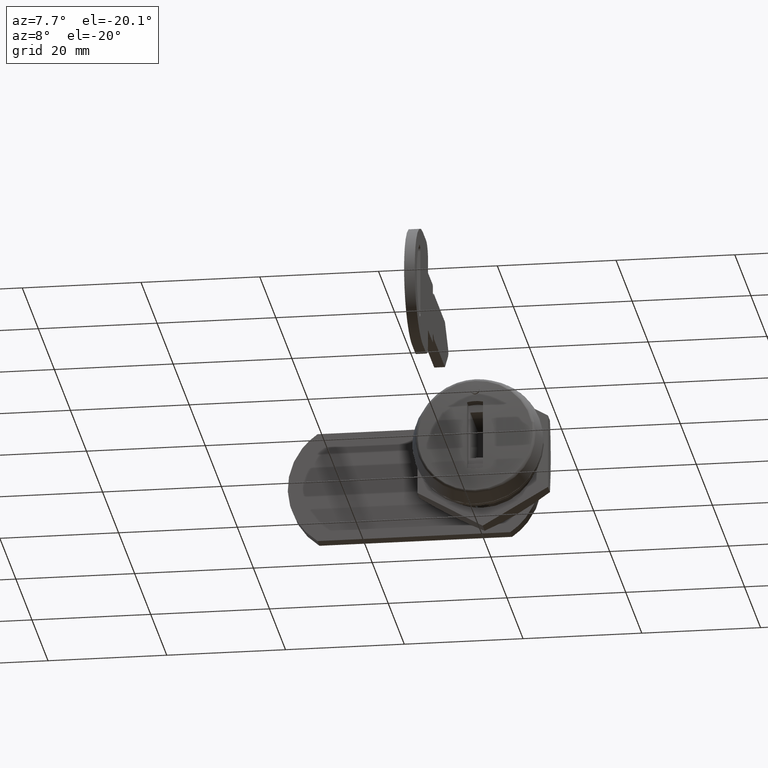
[diagram: clean part render]
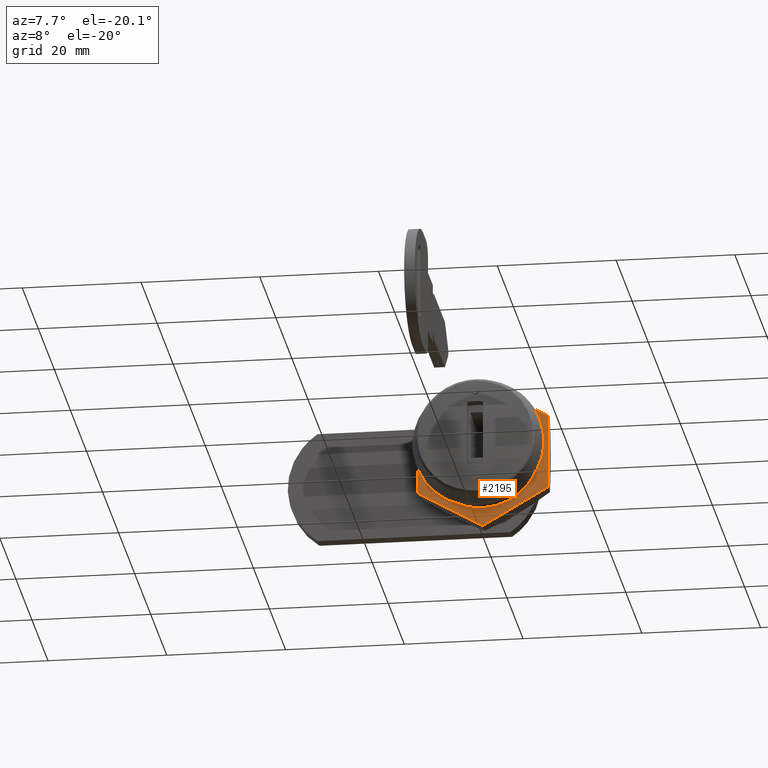
[diagram: same view with one face highlighted and labeled with its STEP entity id]
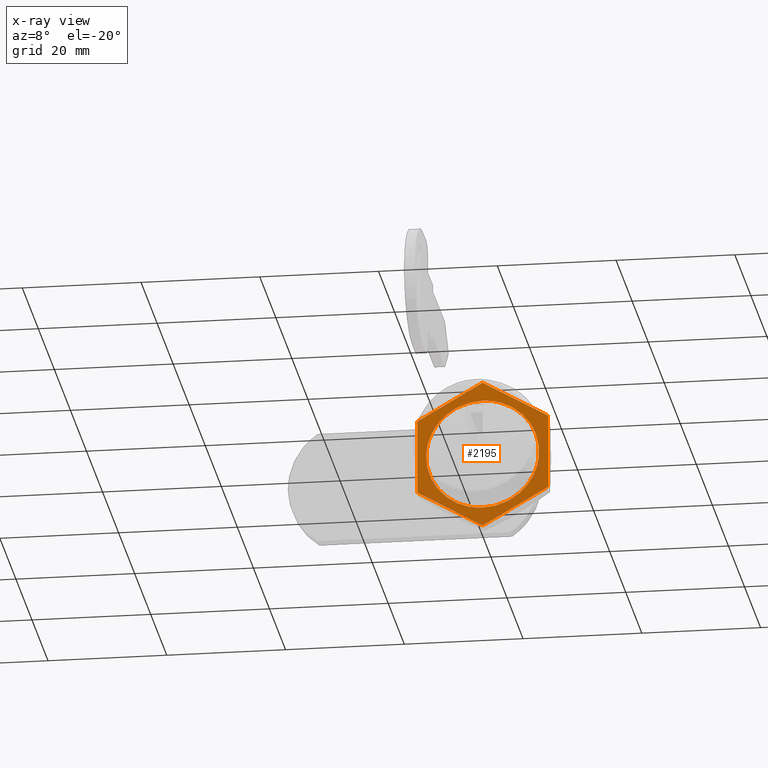
[diagram: x-ray of the same camera — body ghosted, the highlighted face saturated]
A machine part, auxiliary view. The second image highlights one B-rep face of the part: STEP entity #2195.
The next image is the same camera in x-ray: the body ghosted, the highlighted face saturated — about 0% of this face is hidden behind the body in this view.
In plain terms, the highlighted face is a freeform B-spline surface patch.
Its self-contained STEP definition (entity closure, byte-faithful):
#1606=CARTESIAN_POINT('',(9.701256000000001,-9.433590500442691,-1.121325229341343));
#1607=VERTEX_POINT('',#1606);
#1608=CARTESIAN_POINT('',(9.701256000000001,0.0,9.500000000000000));
#1609=VERTEX_POINT('',#1608);
#1610=CARTESIAN_POINT('',(9.701256000000001,-9.433590500442691,-1.121325229341343));
#1611=CARTESIAN_POINT('',(9.701256000000001,-9.499999999999998,-0.562629136796364));
#1612=CARTESIAN_POINT('',(9.701256000000001,-9.500000000000000,0.0));
#1613=CARTESIAN_POINT('',(9.701256000000001,-9.500000000000000,9.500000000000000));
#1614=CARTESIAN_POINT('',(9.701256000000001,0.0,9.500000000000000));
#1622=(BOUNDED_CURVE()B_SPLINE_CURVE(2,(#1610,#1611,#1612,#1613,#1614),.UNSPECIFIED.,.F.,.U.)B_SPLINE_CURVE_WITH_KNOTS((3,2,3),(0.229562473511985,0.250000000000000,0.500000000000000),.UNSPECIFIED.)CURVE()GEOMETRIC_REPRESENTATION_ITEM()RATIONAL_B_SPLINE_CURVE((0.956026754180713,0.976055948329360,1.0,0.707106781186548,1.0))REPRESENTATION_ITEM(''));
#1623=EDGE_CURVE('',#1607,#1609,#1622,.T.);
#1625=CARTESIAN_POINT('',(9.701256000000035,9.482280755819874,0.579958332813856));
#1626=VERTEX_POINT('',#1625);
#1627=CARTESIAN_POINT('',(9.701256000000001,0.0,9.500000000000000));
#1628=CARTESIAN_POINT('',(9.701256000000001,8.936710272605451,9.499999999999998));
#1629=CARTESIAN_POINT('',(9.701256000000035,9.482280755819874,0.579958332813856));
#1637=(BOUNDED_CURVE()B_SPLINE_CURVE(2,(#1627,#1628,#1629),.UNSPECIFIED.,.F.,.U.)B_SPLINE_CURVE_WITH_KNOTS((3,3),(0.500000000000000,0.739333013061288),.UNSPECIFIED.)CURVE()GEOMETRIC_REPRESENTATION_ITEM()RATIONAL_B_SPLINE_CURVE((1.0,0.719603933744629,0.976072150588702))REPRESENTATION_ITEM(''));
#1638=EDGE_CURVE('',#1609,#1626,#1637,.T.);
#1705=CARTESIAN_POINT('',(9.701256000000001,0.0,-9.500000000000000));
#1706=VERTEX_POINT('',#1705);
#1707=CARTESIAN_POINT('',(9.701256000000001,0.0,-9.500000000000000));
#1708=CARTESIAN_POINT('',(9.701256000000003,-8.437657996353991,-9.500000000000000));
#1709=CARTESIAN_POINT('',(9.701256000000001,-9.433590500442691,-1.121325229341343));
#1717=(BOUNDED_CURVE()B_SPLINE_CURVE(2,(#1707,#1708,#1709),.UNSPECIFIED.,.F.,.U.)B_SPLINE_CURVE_WITH_KNOTS((3,3),(0.0,0.229562473511985),.UNSPECIFIED.)CURVE()GEOMETRIC_REPRESENTATION_ITEM()RATIONAL_B_SPLINE_CURVE((1.0,0.731050832857188,0.956026754180713))REPRESENTATION_ITEM(''));
#1718=EDGE_CURVE('',#1706,#1607,#1717,.T.);
#1752=CARTESIAN_POINT('',(9.701256000000035,9.482280755819874,0.579958332813856));
#1753=CARTESIAN_POINT('',(9.701256000000001,9.500000000000000,0.290249851037660));
#1754=CARTESIAN_POINT('',(9.701256000000001,9.500000000000000,0.0));
#1755=CARTESIAN_POINT('',(9.701256000000001,9.500000000000000,-9.500000000000000));
#1756=CARTESIAN_POINT('',(9.701256000000001,0.0,-9.500000000000000));
#1764=(BOUNDED_CURVE()B_SPLINE_CURVE(2,(#1752,#1753,#1754,#1755,#1756),.UNSPECIFIED.,.F.,.U.)B_SPLINE_CURVE_WITH_KNOTS((3,2,3),(0.739333013061288,0.750000000000000,1.0),.UNSPECIFIED.)CURVE()GEOMETRIC_REPRESENTATION_ITEM()RATIONAL_B_SPLINE_CURVE((0.976072150588702,0.987502847441918,1.0,0.707106781186548,1.0))REPRESENTATION_ITEM(''));
#1765=EDGE_CURVE('',#1626,#1706,#1764,.T.);
#2140=CARTESIAN_POINT('',(9.701256000000001,12.098899957359730,13.970605330213269));
#2141=CARTESIAN_POINT('',(9.701256000000001,-12.098900547445711,13.970605330213269));
#2142=CARTESIAN_POINT('',(9.701256000000001,12.098899957359730,-13.970607011585949));
#2143=CARTESIAN_POINT('',(9.701256000000001,-12.098900547445711,-13.970607011585949));
#2144=B_SPLINE_SURFACE_WITH_KNOTS('',1,1,((#2140,#2142),(#2141,#2143)),.UNSPECIFIED.,.F.,.F.,.U.,(2,2),(2,2),(0.0,24.197800504805439),(0.0,27.941212341799211),.UNSPECIFIED.);
#2145=CARTESIAN_POINT('',(9.701256000000001,0.0,12.701705000000000));
#2146=VERTEX_POINT('',#2145);
#2147=CARTESIAN_POINT('',(9.701256000000001,11.0,6.350852000000000));
#2148=VERTEX_POINT('',#2147);
#2149=CARTESIAN_POINT('',(9.701256000000001,0.0,12.701705000000000));
#2150=CARTESIAN_POINT('',(9.701256000000001,11.0,6.350852000000000));
#2151=QUASI_UNIFORM_CURVE('',1,(#2149,#2150),.UNSPECIFIED.,.F.,.U.);
#2152=EDGE_CURVE('',#2146,#2148,#2151,.T.);
#2153=ORIENTED_EDGE('',*,*,#2152,.T.);
#2154=CARTESIAN_POINT('',(9.701256000000001,11.0,-6.350853000000000));
#2155=VERTEX_POINT('',#2154);
#2156=CARTESIAN_POINT('',(9.701256000000001,11.0,6.350852000000000));
#2157=CARTESIAN_POINT('',(9.701256000000001,11.0,-6.350853000000000));
#2158=QUASI_UNIFORM_CURVE('',1,(#2156,#2157),.UNSPECIFIED.,.F.,.U.);
#2159=EDGE_CURVE('',#2148,#2155,#2158,.T.);
#2160=ORIENTED_EDGE('',*,*,#2159,.T.);
#2161=CARTESIAN_POINT('',(9.701256000000001,0.0,-12.701706000000099));
#2162=VERTEX_POINT('',#2161);
#2163=CARTESIAN_POINT('',(9.701256000000001,11.0,-6.350853000000000));
#2164=CARTESIAN_POINT('',(9.701256000000001,0.0,-12.701706000000099));
#2165=QUASI_UNIFORM_CURVE('',1,(#2163,#2164),.UNSPECIFIED.,.F.,.U.);
#2166=EDGE_CURVE('',#2155,#2162,#2165,.T.);
#2167=ORIENTED_EDGE('',*,*,#2166,.T.);
#2168=CARTESIAN_POINT('',(9.701256000000001,-11.0,-6.350853000000000));
#2169=VERTEX_POINT('',#2168);
#2170=CARTESIAN_POINT('',(9.701256000000001,0.0,-12.701706000000099));
#2171=CARTESIAN_POINT('',(9.701256000000001,-11.0,-6.350853000000000));
#2172=QUASI_UNIFORM_CURVE('',1,(#2170,#2171),.UNSPECIFIED.,.F.,.U.);
#2173=EDGE_CURVE('',#2162,#2169,#2172,.T.);
#2174=ORIENTED_EDGE('',*,*,#2173,.T.);
#2175=CARTESIAN_POINT('',(9.701256000000001,-11.0,6.350852000000000));
#2176=VERTEX_POINT('',#2175);
#2177=CARTESIAN_POINT('',(9.701256000000001,-11.0,-6.350853000000000));
#2178=CARTESIAN_POINT('',(9.701256000000001,-11.0,6.350852000000000));
#2179=QUASI_UNIFORM_CURVE('',1,(#2177,#2178),.UNSPECIFIED.,.F.,.U.);
#2180=EDGE_CURVE('',#2169,#2176,#2179,.T.);
#2181=ORIENTED_EDGE('',*,*,#2180,.T.);
#2182=CARTESIAN_POINT('',(9.701256000000001,-11.0,6.350852000000000));
#2183=CARTESIAN_POINT('',(9.701256000000001,0.0,12.701705000000000));
#2184=QUASI_UNIFORM_CURVE('',1,(#2182,#2183),.UNSPECIFIED.,.F.,.U.);
#2185=EDGE_CURVE('',#2176,#2146,#2184,.T.);
#2186=ORIENTED_EDGE('',*,*,#2185,.T.);
#2187=EDGE_LOOP('',(#2153,#2160,#2167,#2174,#2181,#2186));
#2188=FACE_OUTER_BOUND('',#2187,.T.);
#2189=ORIENTED_EDGE('',*,*,#1638,.F.);
#2190=ORIENTED_EDGE('',*,*,#1623,.F.);
#2191=ORIENTED_EDGE('',*,*,#1718,.F.);
#2192=ORIENTED_EDGE('',*,*,#1765,.F.);
#2193=EDGE_LOOP('',(#2189,#2190,#2191,#2192));
#2194=FACE_BOUND('',#2193,.T.);
#2195=ADVANCED_FACE('',(#2188,#2194),#2144,.F.);